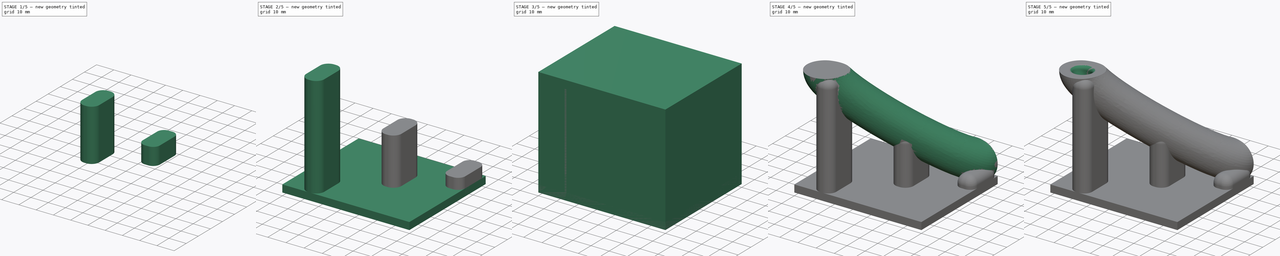
[diagram: build sequence overview — one tinted view per stage of 5, left to right]
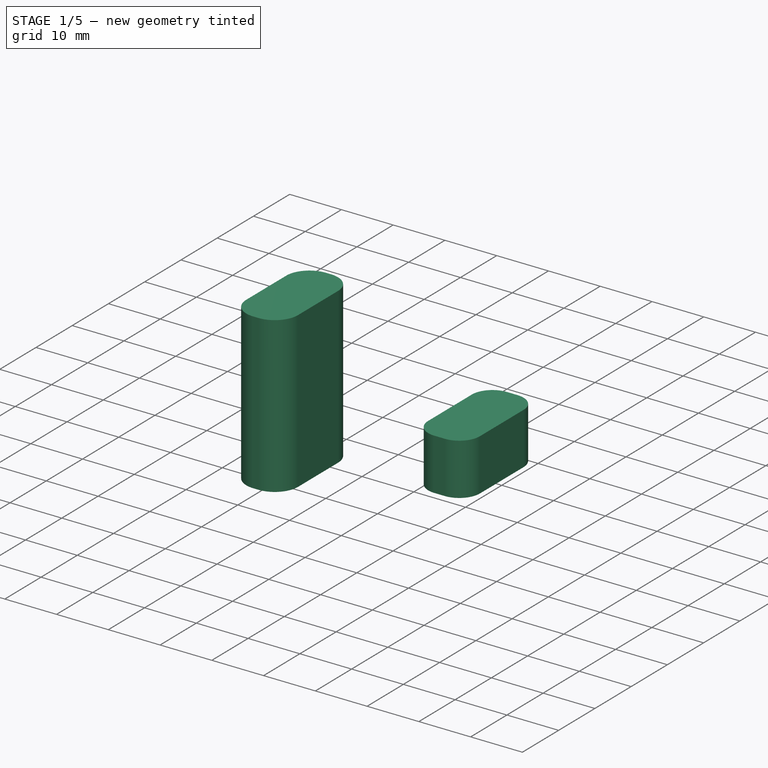
[diagram: stage 1 of 5 — iso view after this stage's code; geometry added in this stage tinted green]
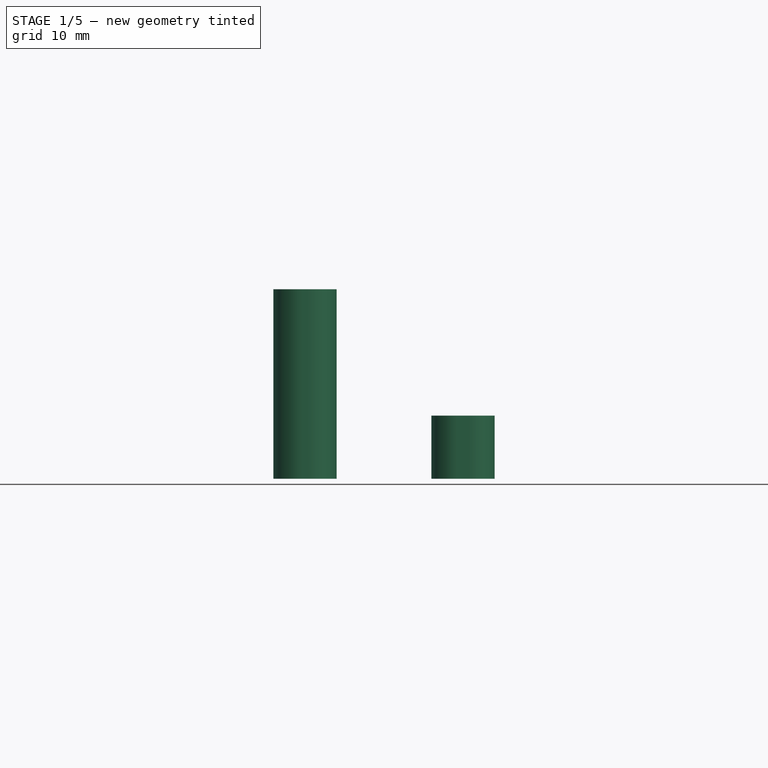
[diagram: stage 1 of 5 — front view after this stage's code; geometry added in this stage tinted green]
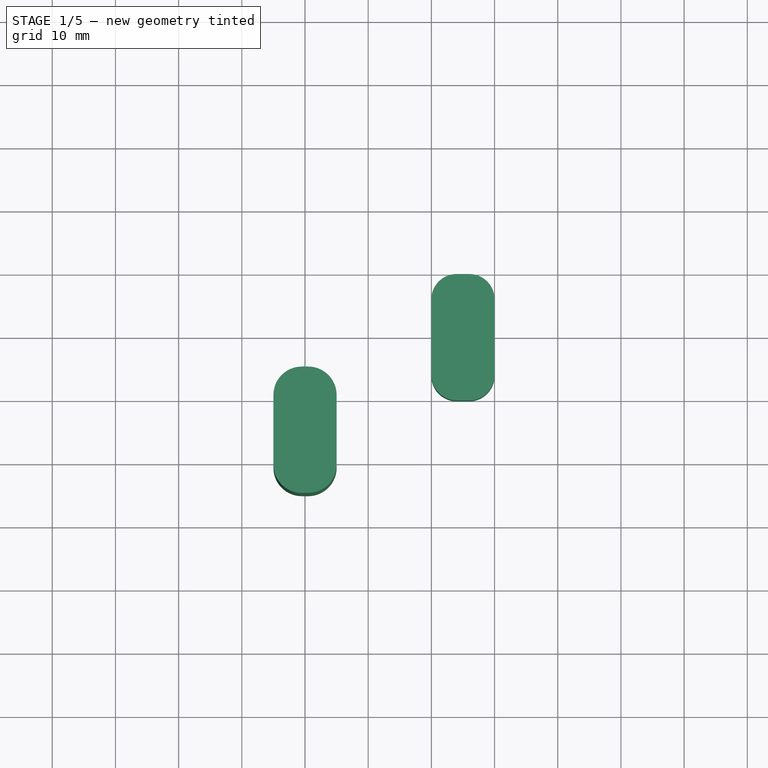
[diagram: stage 1 of 5 — top view after this stage's code; geometry added in this stage tinted green]
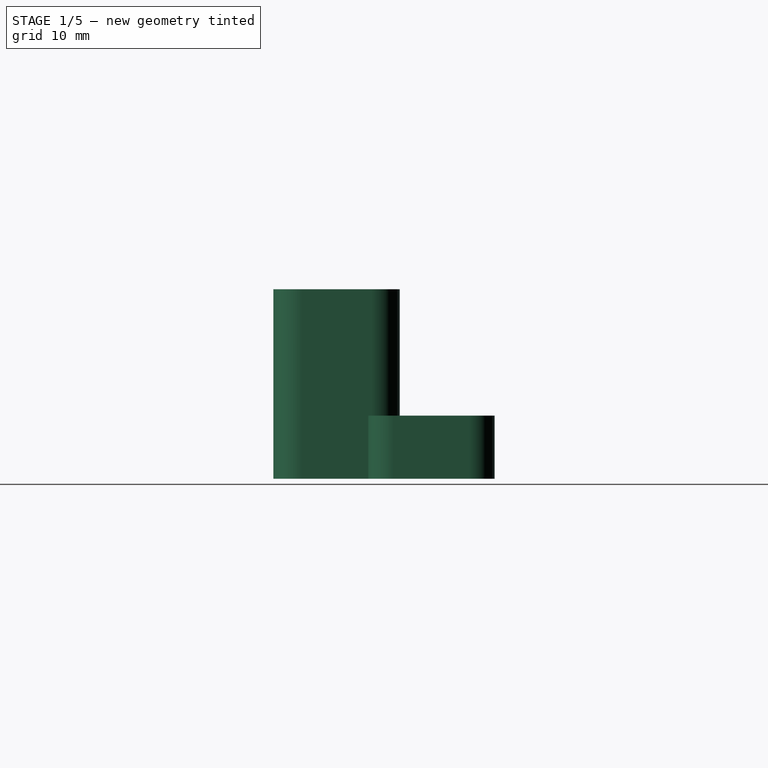
[diagram: stage 1 of 5 — right view after this stage's code; geometry added in this stage tinted green]
FCSTD DOCUMENT  (FreeCAD 1.0R39285 (Git))
Label: gasInlet
License: All rights reserved
LicenseURL: http://en.wikipedia.org/wiki/All_rights_reserved
objects: Sketcher::SketchObject×8, Part::Box×6, Part::Fillet×5, Part::Part2DObjectPython×2, PartDesign::AdditivePipe×2, PartDesign::Body×2, Part::MultiCommon×2, Part::MultiFuse×2, Part::Cut×1
note: 42 computed .brp shape members not serialized (recipe doc carries the construction recipe); baked Part::Feature solids carry a one-line shape summary decoded from their .brp

FEATURE [Part::Box] Box003  label="Cube003"
  AttacherType = Attacher::AttachEngine3D
  Height = 30
  Length = 10
  Placement = pos=(25,25,0) rot=(0,0,1;0rad)
  Width = 20
FEATURE [Part::Box] Box005  label="Cube005"
  AttacherType = Attacher::AttachEngine3D
  Height = 10
  Length = 10
  Placement = pos=(50,40,0) rot=(0,0,1;0rad)
  Width = 20
FEATURE [Part::Fillet] Fillet001
  Base = -> Box003
  EdgeLinks = -> Box003 [Edge1,Edge3,Edge5,Edge7]
  Edges = 4 edges r=4.5: [Edge1,Edge3,Edge5,Edge7]
FEATURE [Part::Fillet] Fillet002
  Base = -> Box005
  EdgeLinks = -> Box005 [Edge1,Edge3,Edge5,Edge7]
  Edges = 4 edges r=4: [Edge1,Edge3,Edge5,Edge7]
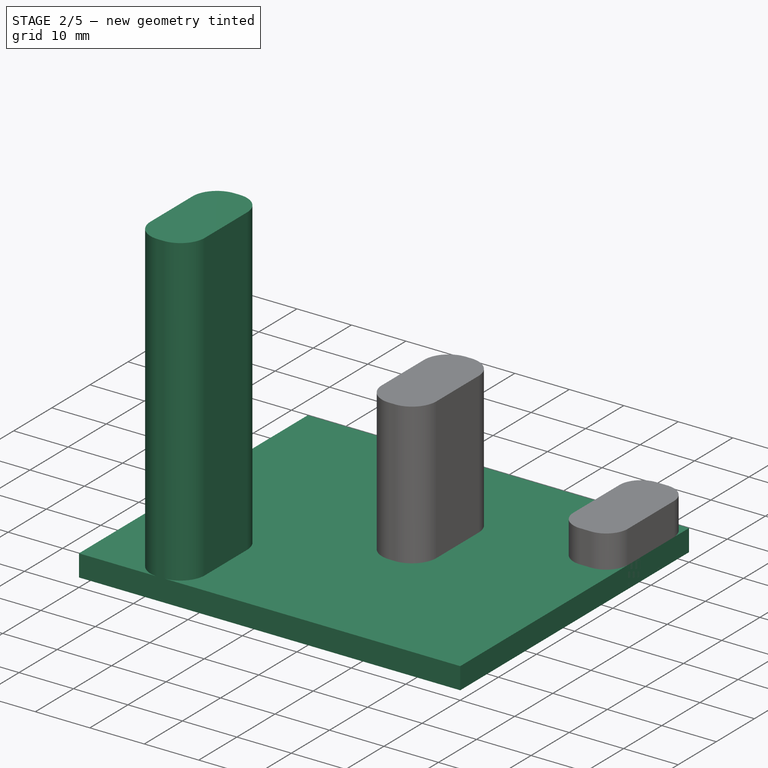
[diagram: stage 2 of 5 — iso view after this stage's code; geometry added in this stage tinted green]
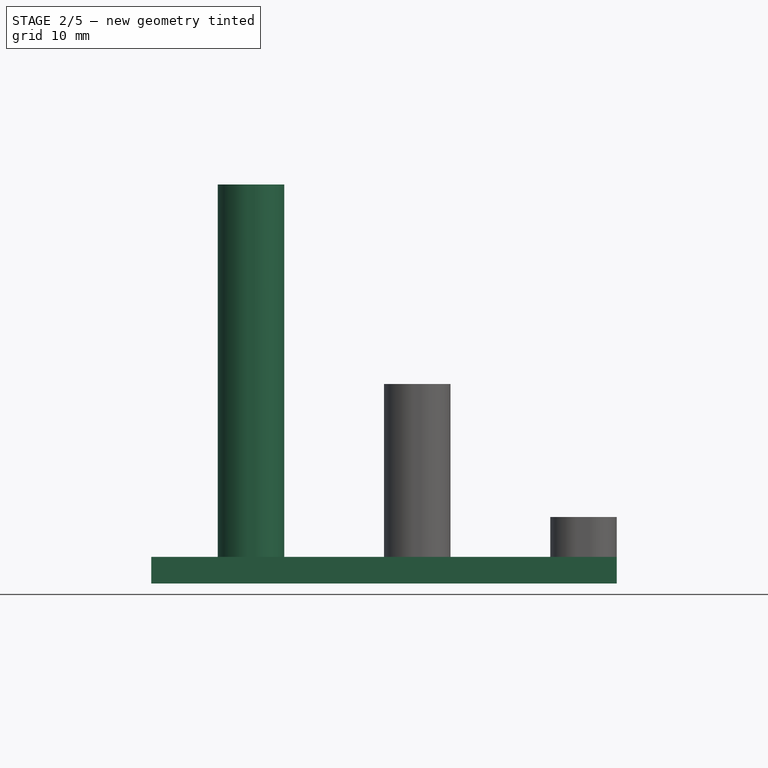
[diagram: stage 2 of 5 — front view after this stage's code; geometry added in this stage tinted green]
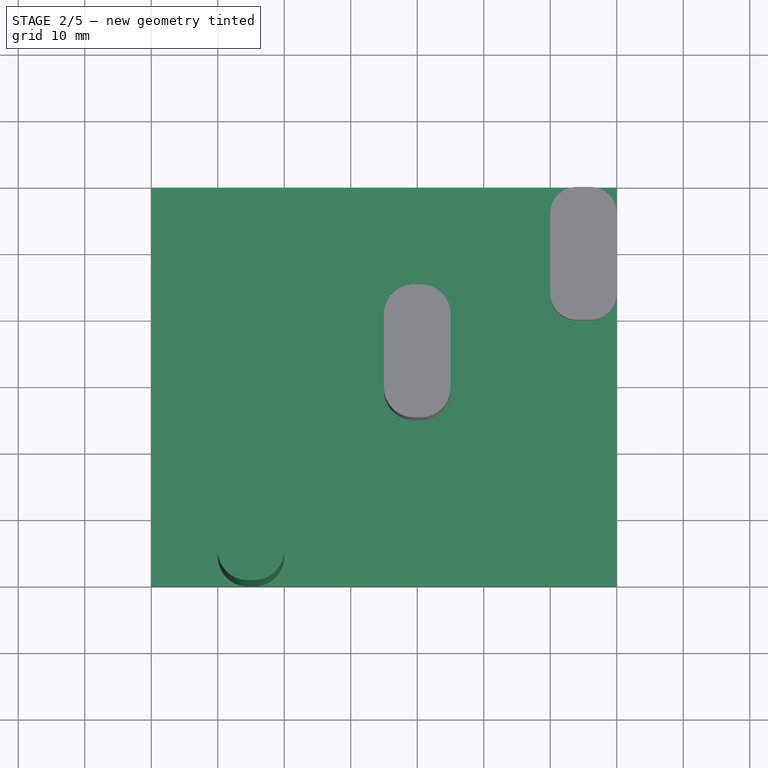
[diagram: stage 2 of 5 — top view after this stage's code; geometry added in this stage tinted green]
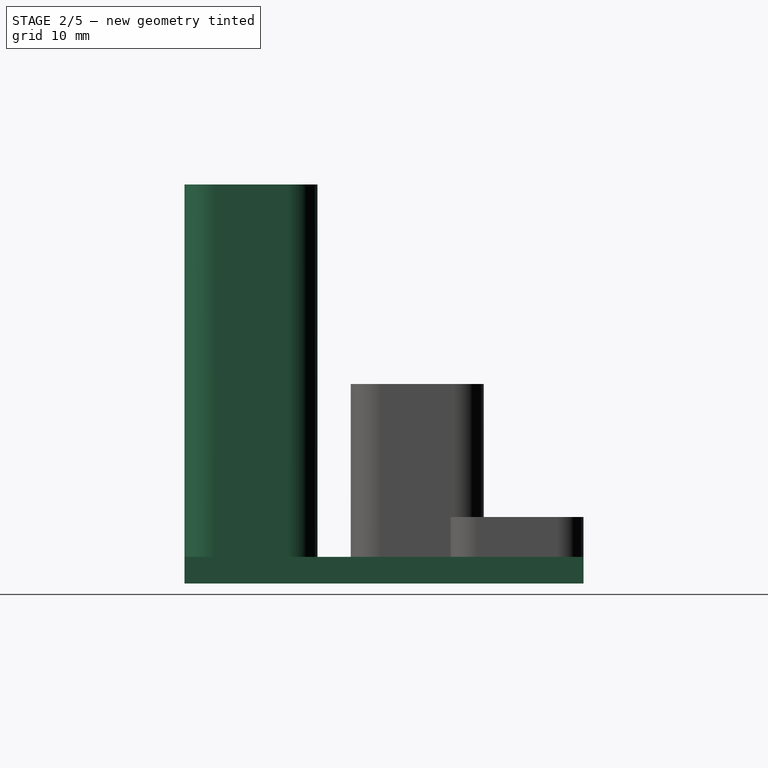
[diagram: stage 2 of 5 — right view after this stage's code; geometry added in this stage tinted green]
FEATURE [Part::Box] Box  label="Cube"
  AttacherType = Attacher::AttachEngine3D
  Height = 4
  Length = 70
  Placement = pos=(-10,0,0) rot=(0,0,1;0rad)
  Width = 60
FEATURE [Part::Box] Box004  label="Cube004"
  AttacherType = Attacher::AttachEngine3D
  Height = 60
  Length = 10
  Width = 20
FEATURE [Part::Fillet] Fillet
  Base = -> Box004
  EdgeLinks = -> Box004 [Edge1,Edge3,Edge5,Edge7]
  Edges = 4 edges r=4.5: [Edge1,Edge3,Edge5,Edge7]
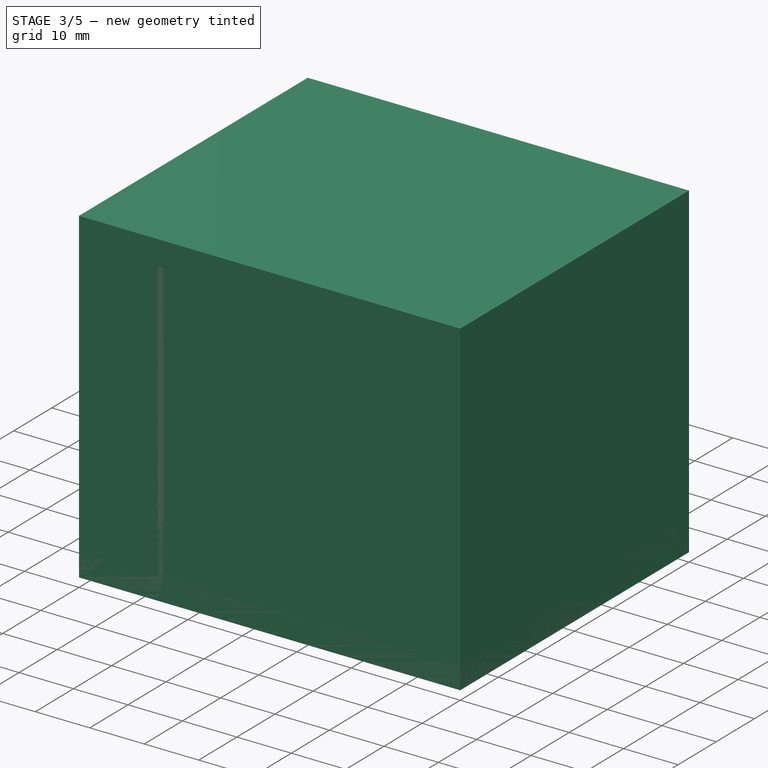
[diagram: stage 3 of 5 — iso view after this stage's code; geometry added in this stage tinted green]
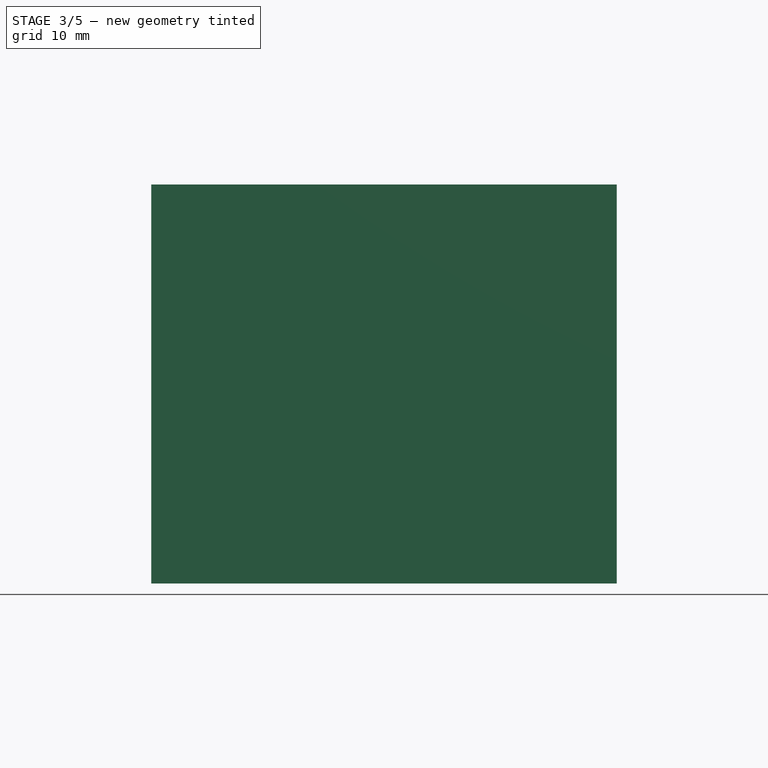
[diagram: stage 3 of 5 — front view after this stage's code; geometry added in this stage tinted green]
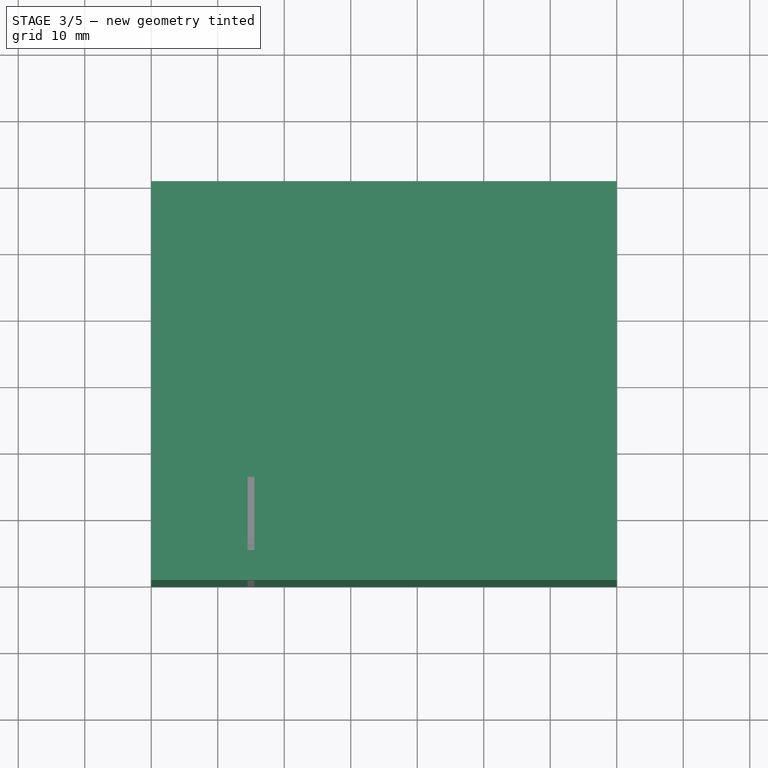
[diagram: stage 3 of 5 — top view after this stage's code; geometry added in this stage tinted green]
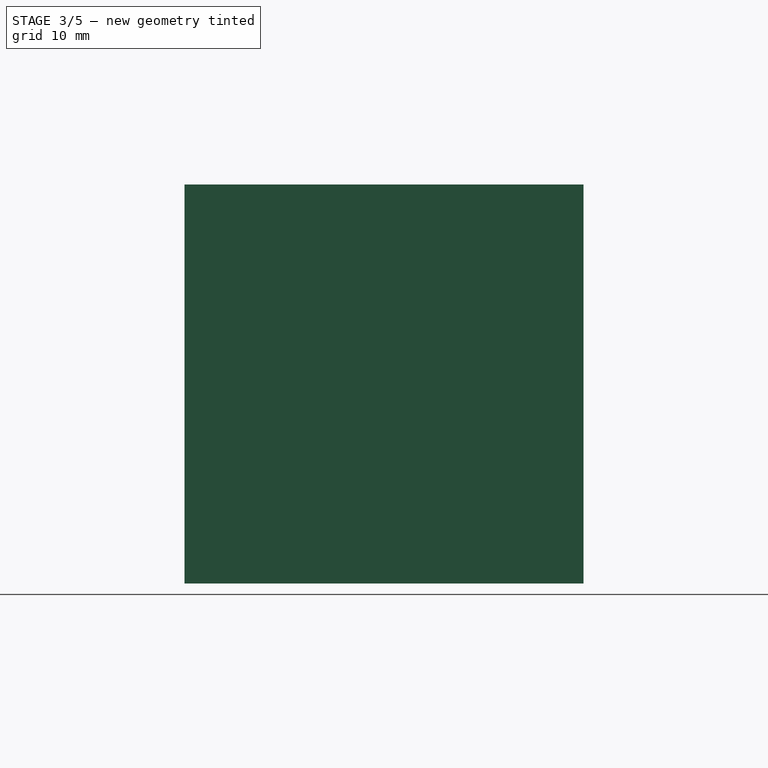
[diagram: stage 3 of 5 — right view after this stage's code; geometry added in this stage tinted green]
FEATURE [Sketcher::SketchObject] Sketch006
  ArcFitTolerance = 1e-06
  FullyConstrained = true
  MakeInternals = false
  Placement = pos=(0,0,10) rot=(0,0,1;0rad)
  sketch-geometry (1):
    g0: LineSegment StartX=50 StartY=60 StartZ=0 EndX=50 EndY=50 EndZ=0
  constraints (4):
    c: Vertical(g0)
    c: DistanceX(g0) = 50
    c: DistanceY(g0,g0) = 10
    c: DistanceY(g0) = 60
FEATURE [Sketcher::SketchObject] Sketch007
  ArcFitTolerance = 1e-06
  FullyConstrained = true
  MakeInternals = false
  Placement = pos=(0,10,10) rot=(1,0,0;1.5708rad)
  sketch-geometry (1):
    g0: LineSegment StartX=0 StartY=50 StartZ=0 EndX=0 EndY=40 EndZ=0
  constraints (4):
    c: Vertical(g0)
    c: DistanceX(g0) = 0
    c: DistanceY(g0) = 50
    c: DistanceY(g0,g0) = 10
FEATURE [PartDesign::Body] Body001  label="outerPipe"
  AllowCompound = false
  Group = -> [Sketch004,Sketch005,Sketch006,Sketch007,BezCurve001,AdditivePipe001]
  Origin = -> Origin001
  Tip = -> AdditivePipe001
FEATURE [Part::Box] Box001  label="Cube001"
  AttacherType = Attacher::AttachEngine3D
  Height = 60
  Length = 70
  Placement = pos=(-10,0,0) rot=(0,0,1;0rad)
  Width = 60
FEATURE [Part::Box] Box002  label="Cube002"
  AttacherType = Attacher::AttachEngine3D
  Height = 60
  Length = 70
  Placement = pos=(-10,0,0) rot=(0,0,1;0rad)
  Width = 60
FEATURE [Part::MultiFuse] Fusion
  Shapes = -> [Box,Fillet,Fillet001,Fillet002]
FEATURE [Part::Fillet] Fillet003
  Base = -> Fusion
  EdgeLinks = -> Fusion [Edge59,Edge61,Edge63,Edge66,Edge68,Edge72,Edge74,Edge76,Edge78,Edge81,Edge82,Edge84,Edge87,Edge90,Edge92,Edge93,Edge95,Edge97,Edge100,Edge101,Edge107,Edge108,Edge109,Edge110]
  Edges = 24 edges r=4.5: [Edge59,Edge61,Edge63,Edge66,Edge68,Edge72,Edge74,Edge76,Edge78,Edge81,Edge82,Edge84,Edge87,Edge90,Edge92,Edge93,Edge95,Edge97,Edge100,Edge101,Edge107,Edge108,Edge109,Edge110]
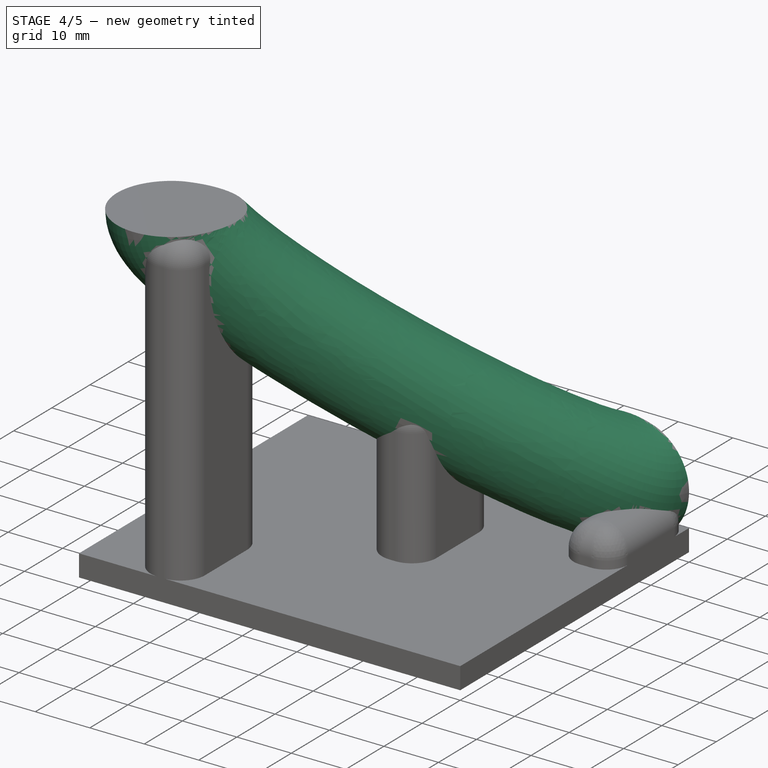
[diagram: stage 4 of 5 — iso view after this stage's code; geometry added in this stage tinted green]
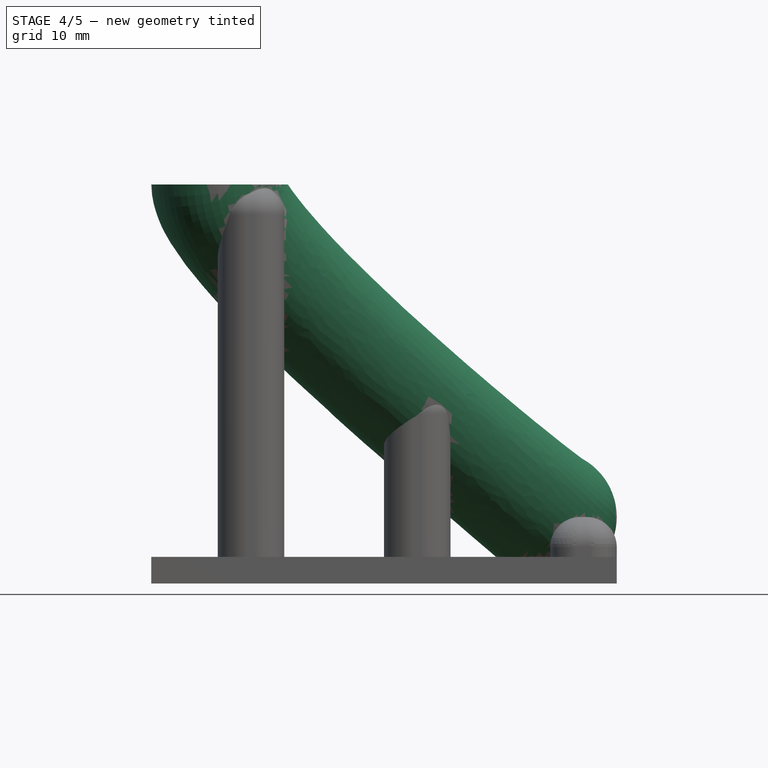
[diagram: stage 4 of 5 — front view after this stage's code; geometry added in this stage tinted green]
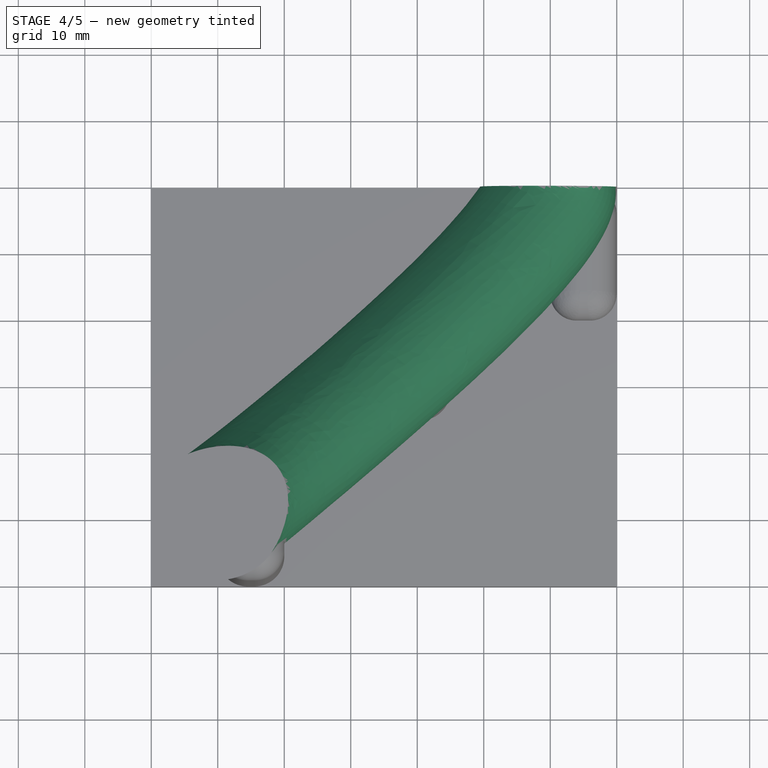
[diagram: stage 4 of 5 — top view after this stage's code; geometry added in this stage tinted green]
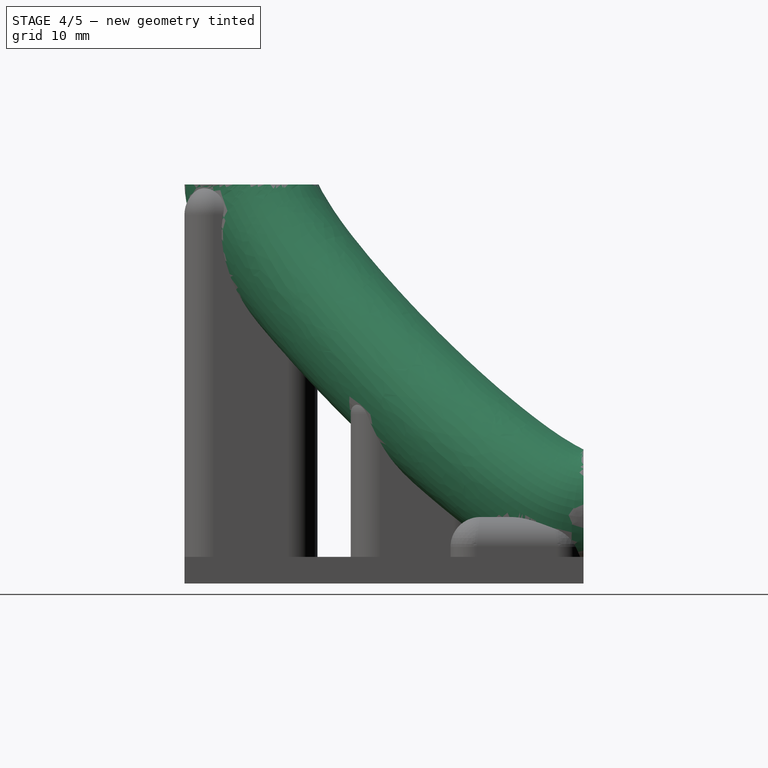
[diagram: stage 4 of 5 — right view after this stage's code; geometry added in this stage tinted green]
FEATURE [PartDesign::Body] Body  label="innerPipe"
  AllowCompound = false
  Group = -> [Sketch,Sketch001,Sketch002,Sketch003,BezCurve,AdditivePipe]
  Origin = -> Origin
  Tip = -> AdditivePipe
FEATURE [Part::Part2DObjectPython] BezCurve001  # Draft 2D object (typed FeaturePython)
  Area = 0
  Closed = false
  Degree = 3
  Length = 88.4039
  MakeFace = true
  Points = (4) [(50,60,10),(50,50,10),(0,10,50),(0,10,60)]
FEATURE [Sketcher::SketchObject] Sketch004
  ArcFitTolerance = 1e-06
  FullyConstrained = true
  MakeInternals = false
  Placement = pos=(0,60,0) rot=(1,0,0;1.5708rad)
  sketch-geometry (1):
    g0: Circle CenterX=50 CenterY=10 CenterZ=0 NormalX=0 NormalY=0 NormalZ=1 AngleXU=0 Radius=10
  constraints (3):
    c: Radius(g0) = 10
    c: DistanceX(g0) = 50
    c: DistanceY(g0) = 10
FEATURE [Sketcher::SketchObject] Sketch005
  ArcFitTolerance = 1e-06
  FullyConstrained = true
  MakeInternals = false
  Placement = pos=(0,0,60) rot=(0,0,1;0rad)
  sketch-geometry (1):
    g0: Circle CenterX=0 CenterY=10 CenterZ=0 NormalX=0 NormalY=0 NormalZ=1 AngleXU=0 Radius=10
  constraints (3):
    c: DistanceX(g0) = 0
    c: DistanceY(g0) = 10
    c: Radius(g0) = 10
FEATURE [PartDesign::AdditivePipe] AdditivePipe001
  AuxilleryCurvelinear = true
  AuxillerySpineTangent = false
  Binormal = (0,0,0)
  Mode = 0
  Placement = pos=(0,60,0) rot=(1,0,0;1.5708rad)
  Profile = -> Sketch004 [Edge1]
  Sections = -> [Sketch005]
  Spine = -> BezCurve001
  SpineTangent = false
  Suppressed = false
  Transformation = 1
  Transition = 0
FEATURE [Part::MultiCommon] Common
  Shapes = -> [Body001,Box001]
FEATURE [Part::MultiCommon] Common001
  Shapes = -> [Box002,Common]
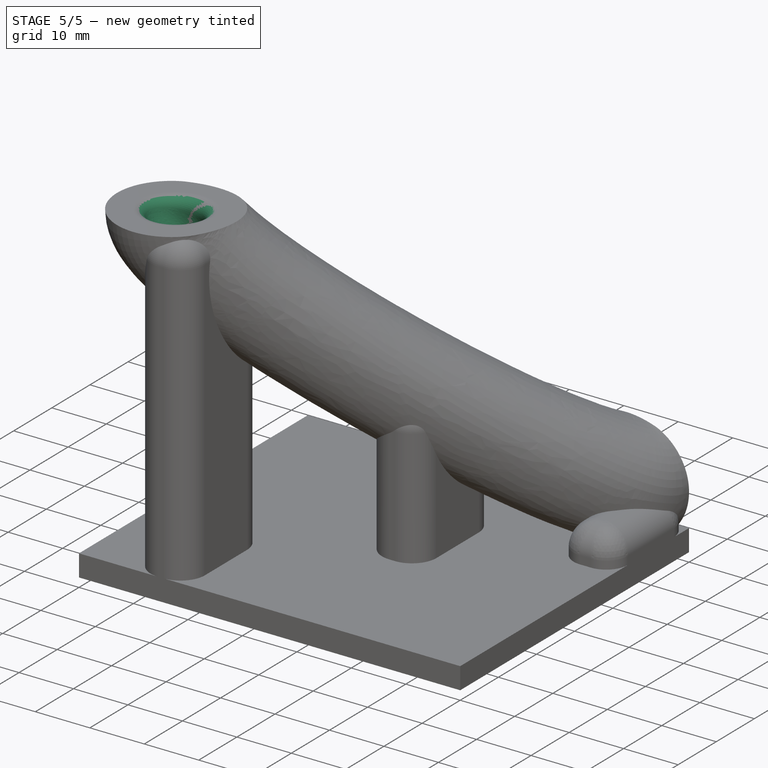
[diagram: stage 5 of 5 — iso view after this stage's code; geometry added in this stage tinted green]
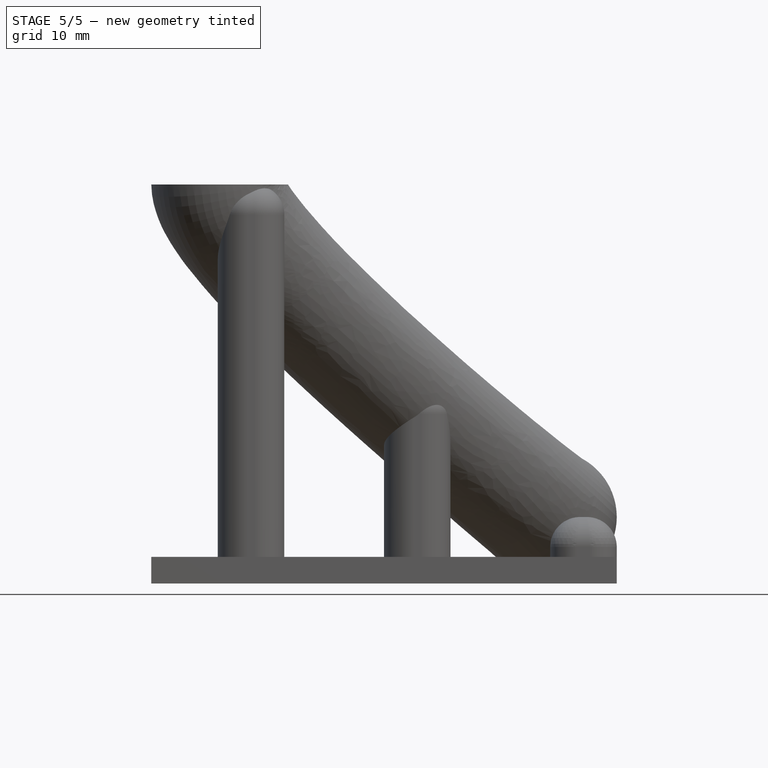
[diagram: stage 5 of 5 — front view after this stage's code; geometry added in this stage tinted green]
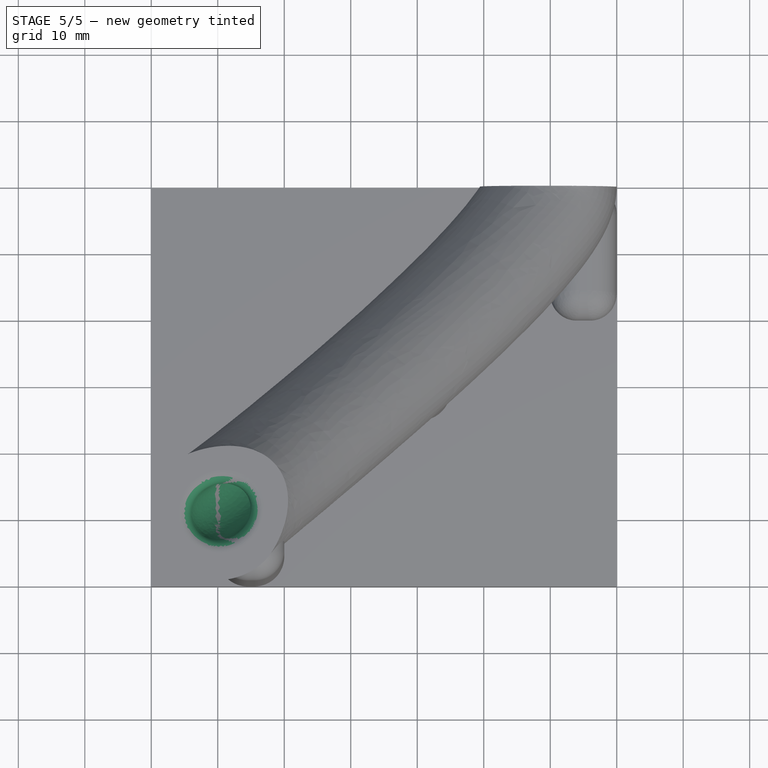
[diagram: stage 5 of 5 — top view after this stage's code; geometry added in this stage tinted green]
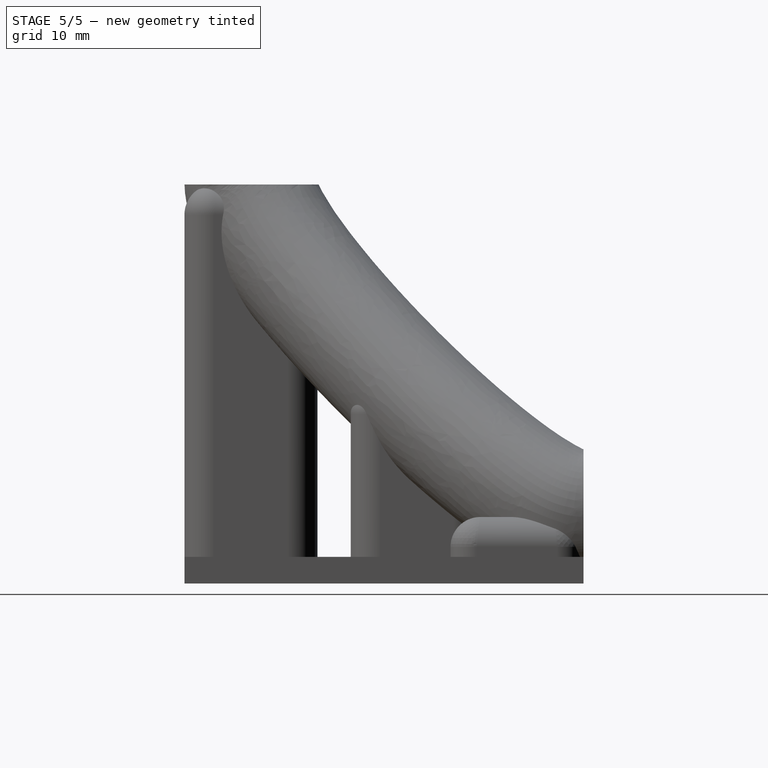
[diagram: stage 5 of 5 — right view after this stage's code; geometry added in this stage tinted green]
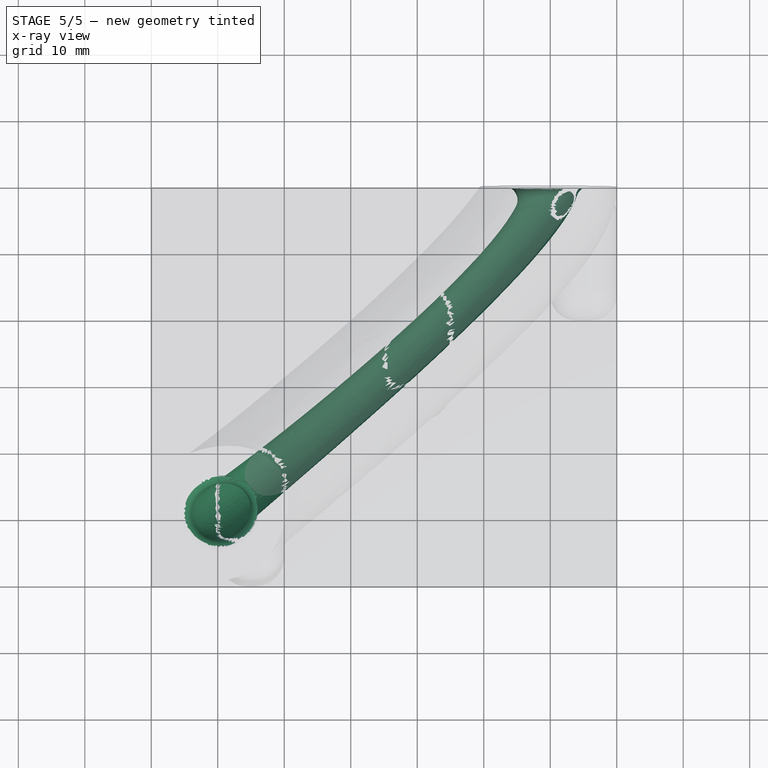
[diagram: stage 5 of 5 — x-ray composite at the top view; earlier geometry ghosted, this stage's added geometry solid]
FEATURE [Sketcher::SketchObject] Sketch
  ArcFitTolerance = 1e-06
  FullyConstrained = true
  MakeInternals = false
  Placement = pos=(0,60,0) rot=(1,0,0;1.5708rad)
  sketch-geometry (1):
    g0: Circle CenterX=50 CenterY=10 CenterZ=0 NormalX=0 NormalY=0 NormalZ=1 AngleXU=0 Radius=4.25
  constraints (3):
    c: Radius(g0) = 4.25
    c: DistanceX(g0) = 50
    c: DistanceY(g0) = 10
FEATURE [Sketcher::SketchObject] Sketch001
  ArcFitTolerance = 1e-06
  FullyConstrained = true
  MakeInternals = false
  Placement = pos=(0,0,60) rot=(0,0,1;0rad)
  sketch-geometry (1):
    g0: Circle CenterX=0 CenterY=10 CenterZ=0 NormalX=0 NormalY=0 NormalZ=1 AngleXU=0 Radius=4.25
  constraints (3):
    c: DistanceX(g0) = 0
    c: DistanceY(g0) = 10
    c: Radius(g0) = 4.25
FEATURE [Sketcher::SketchObject] Sketch002
  ArcFitTolerance = 1e-06
  FullyConstrained = true
  MakeInternals = false
  Placement = pos=(0,0,10) rot=(0,0,1;0rad)
  sketch-geometry (1):
    g0: LineSegment StartX=50 StartY=60 StartZ=0 EndX=50 EndY=50 EndZ=0
  constraints (4):
    c: Vertical(g0)
    c: DistanceX(g0) = 50
    c: DistanceY(g0,g0) = 10
    c: DistanceY(g0) = 60
FEATURE [Sketcher::SketchObject] Sketch003
  ArcFitTolerance = 1e-06
  FullyConstrained = true
  MakeInternals = false
  Placement = pos=(0,10,10) rot=(1,0,0;1.5708rad)
  sketch-geometry (1):
    g0: LineSegment StartX=0 StartY=50 StartZ=0 EndX=0 EndY=40 EndZ=0
  constraints (4):
    c: Vertical(g0)
    c: DistanceX(g0) = 0
    c: DistanceY(g0) = 50
    c: DistanceY(g0,g0) = 10
FEATURE [Part::Part2DObjectPython] BezCurve  # Draft 2D object (typed FeaturePython)
  Area = 0
  Closed = false
  Degree = 3
  Length = 88.4039
  MakeFace = true
  Points = (4) [(50,60,10),(50,50,10),(0,10,50),(0,10,60)]
FEATURE [PartDesign::AdditivePipe] AdditivePipe
  AuxilleryCurvelinear = true
  AuxillerySpineTangent = false
  Binormal = (0,0,0)
  Mode = 1
  Placement = pos=(0,60,0) rot=(1,0,0;1.5708rad)
  Profile = -> Sketch [Edge1]
  Sections = -> [Sketch001]
  Spine = -> BezCurve
  SpineTangent = false
  Suppressed = false
  Transformation = 1
  Transition = 0
FEATURE [Part::MultiFuse] Fusion001
  Shapes = -> [Fillet003,Common001]
FEATURE [Part::Cut] Cut
  Base = -> Fusion001
  Tool = -> Body
FEATURE [Part::Fillet] Fillet004
  Base = -> Cut
  EdgeLinks = -> Cut [Edge10,Edge56]
  Edges = 2 edges r=2: [Edge10,Edge56]
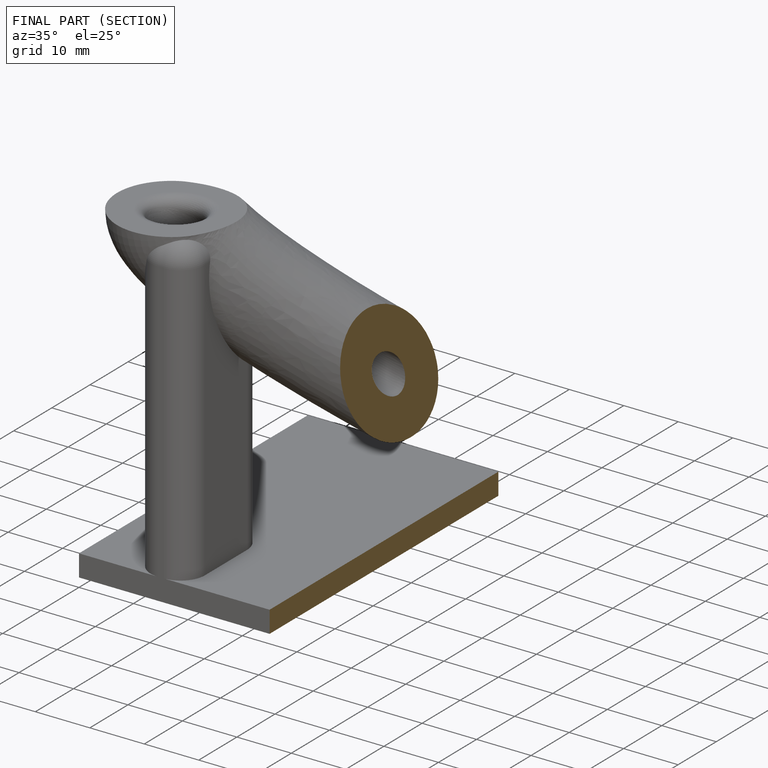
[diagram: finished part — half-section view (interior)]
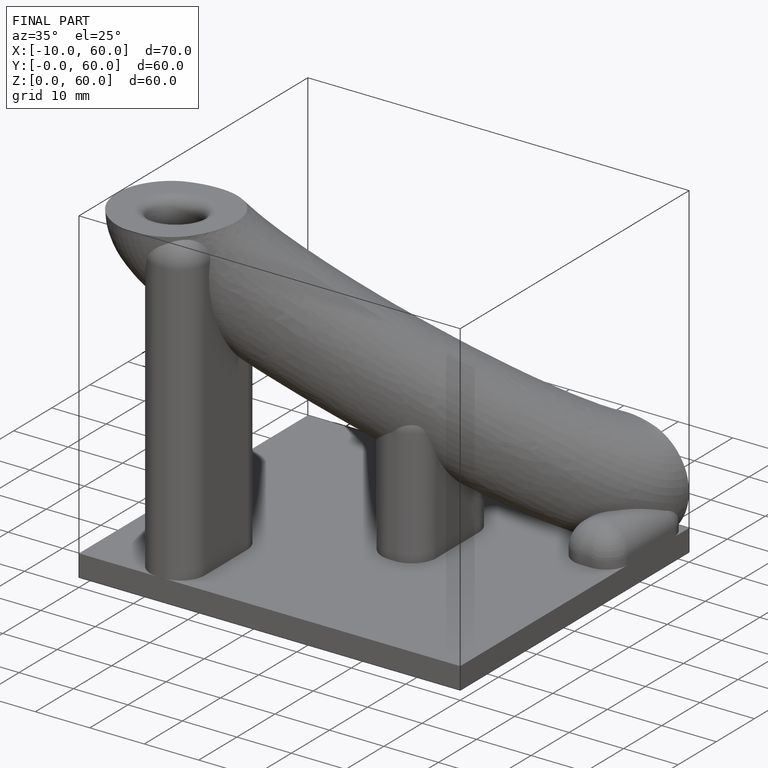
[diagram: finished part — iso view with bounding-box wireframe]
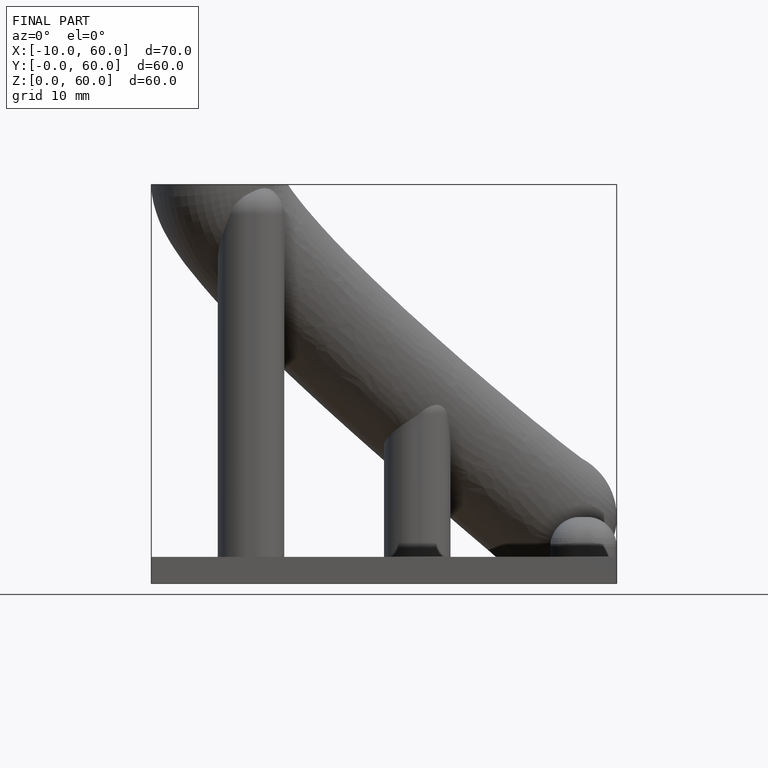
[diagram: finished part — front view with bounding-box wireframe]
